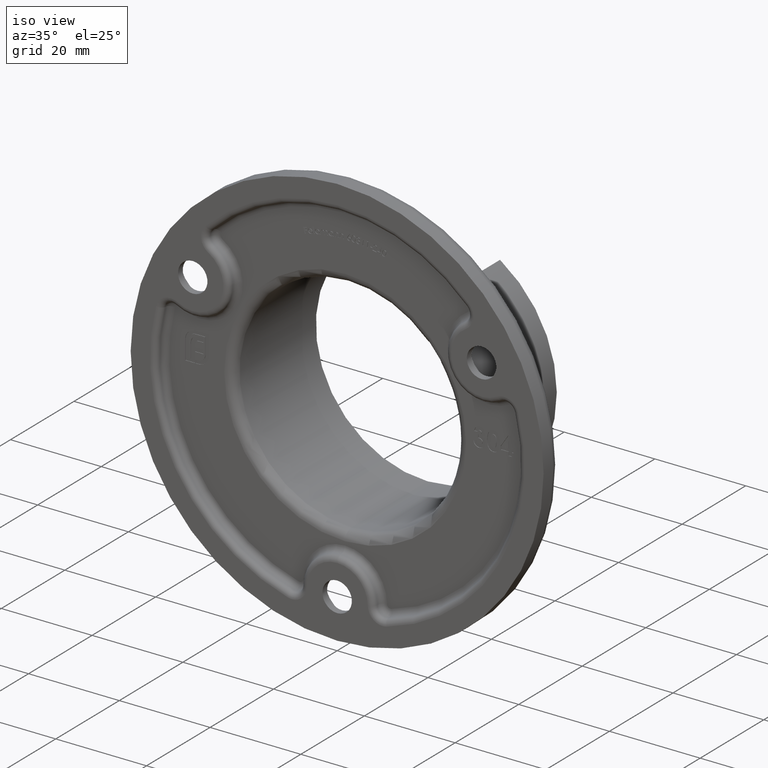
[diagram: clean part render]
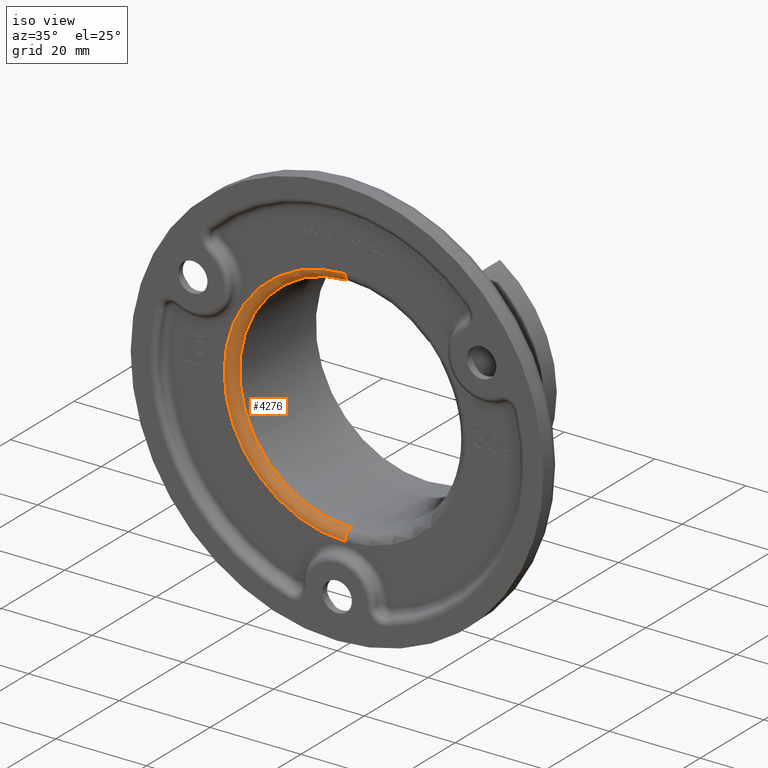
[diagram: same view with one face highlighted and labeled with its STEP entity id]
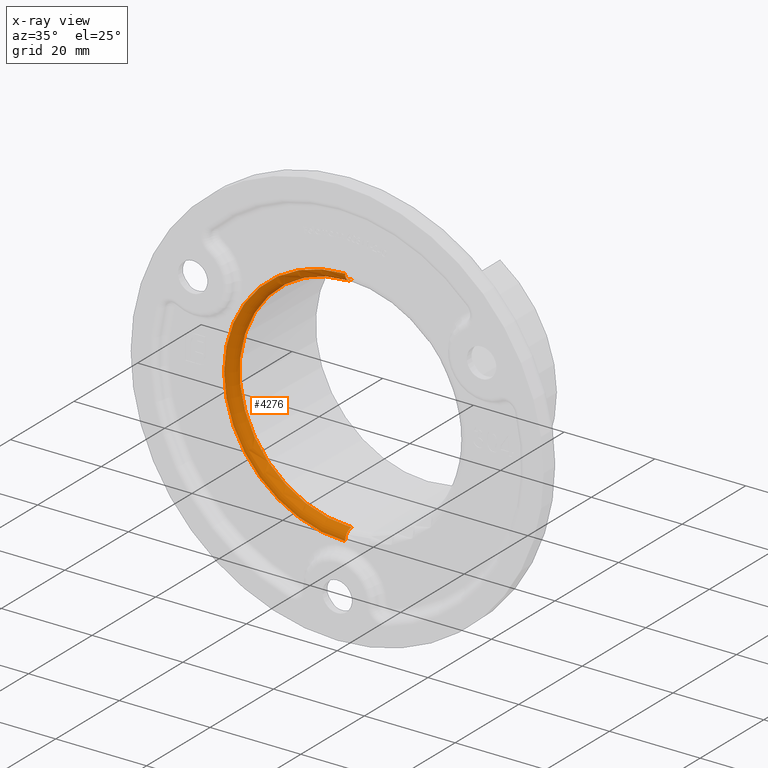
[diagram: x-ray of the same camera — body ghosted, the highlighted face saturated]
A machine part, iso view. The second image highlights one B-rep face of the part: STEP entity #4276.
The next image is the same camera in x-ray: the body ghosted, the highlighted face saturated — about 0% of this face is hidden behind the body in this view.
In plain terms, the highlighted toroidal blend (fillet) surface has major radius 26.65 mm and minor (blend) radius 2 mm.
Its self-contained STEP definition (entity closure, byte-faithful):
#464 = CARTESIAN_POINT ( 'NONE',  ( 3.018754359898225504E-15, 4.500000000000000888, 24.64999999999999858 ) ) ;
#1448 = AXIS2_PLACEMENT_3D ( 'NONE', #6290, #1476, #7697 ) ;
#1476 = DIRECTION ( 'NONE',  ( -0.000000000000000000, 1.000000000000000000, -0.000000000000000000 ) ) ;
#1983 = EDGE_CURVE ( 'NONE', #20028, #11412, #12716, .T. ) ;
#2888 = DIRECTION ( 'NONE',  ( 0.000000000000000000, 0.000000000000000000, 1.000000000000000000 ) ) ;
#3058 = AXIS2_PLACEMENT_3D ( 'NONE', #20745, #19326, #7841 ) ;
#3071 = EDGE_CURVE ( 'NONE', #11412, #3795, #15763, .T. ) ;
#3115 = VERTEX_POINT ( 'NONE', #464 ) ;
#3720 = DIRECTION ( 'NONE',  ( 0.000000000000000000, 0.000000000000000000, 1.000000000000000000 ) ) ;
#3795 = VERTEX_POINT ( 'NONE', #17101 ) ;
#4276 = ADVANCED_FACE ( 'NONE', ( #16717 ), #6894, .T. ) ;
#4499 = CARTESIAN_POINT ( 'NONE',  ( 3.263683719727696195E-15, 2.500000000000000444, -26.64999999999999858 ) ) ;
#4908 = EDGE_CURVE ( 'NONE', #3115, #3795, #7132, .T. ) ;
#5338 = CIRCLE ( 'NONE', #11071, 24.64999999999999858 ) ;
#5775 = AXIS2_PLACEMENT_3D ( 'NONE', #13585, #18312, #3720 ) ;
#6290 = CARTESIAN_POINT ( 'NONE',  ( 0.000000000000000000, 4.500000000000000888, 0.000000000000000000 ) ) ;
#6311 = EDGE_CURVE ( 'NONE', #3115, #20028, #5338, .T. ) ;
#6624 = CARTESIAN_POINT ( 'NONE',  ( 0.000000000000000000, 4.500000000000000888, -24.64999999999999858 ) ) ;
#6894 = TOROIDAL_SURFACE ( 'NONE', #1448, 26.64999999999999858, 2.000000000000000000 ) ;
#7132 = CIRCLE ( 'NONE', #5775, 2.000000000000001776 ) ;
#7697 = DIRECTION ( 'NONE',  ( 0.000000000000000000, 0.000000000000000000, 1.000000000000000000 ) ) ;
#7841 = DIRECTION ( 'NONE',  ( 1.224646799147351482E-16, 0.000000000000000000, -1.000000000000000000 ) ) ;
#8035 = ORIENTED_EDGE ( 'NONE', *, *, #6311, .F. ) ;
#8373 = EDGE_LOOP ( 'NONE', ( #14718, #8035, #18229, #18210 ) ) ;
#9175 = CARTESIAN_POINT ( 'NONE',  ( 0.000000000000000000, 2.500000000000000000, 0.000000000000000000 ) ) ;
#9241 = DIRECTION ( 'NONE',  ( 0.000000000000000000, -1.000000000000000000, 0.000000000000000000 ) ) ;
#11071 = AXIS2_PLACEMENT_3D ( 'NONE', #19106, #9241, #18961 ) ;
#11412 = VERTEX_POINT ( 'NONE', #4499 ) ;
#12716 = CIRCLE ( 'NONE', #3058, 2.000000000000001776 ) ;
#13585 = CARTESIAN_POINT ( 'NONE',  ( 0.000000000000000000, 4.500000000000000888, 26.64999999999999858 ) ) ;
#14718 = ORIENTED_EDGE ( 'NONE', *, *, #1983, .F. ) ;
#15763 = CIRCLE ( 'NONE', #18590, 26.64999999999999858 ) ;
#16717 = FACE_OUTER_BOUND ( 'NONE', #8373, .T. ) ;
#17101 = CARTESIAN_POINT ( 'NONE',  ( 0.000000000000000000, 2.500000000000000444, 26.64999999999999858 ) ) ;
#18210 = ORIENTED_EDGE ( 'NONE', *, *, #3071, .F. ) ;
#18229 = ORIENTED_EDGE ( 'NONE', *, *, #4908, .T. ) ;
#18312 = DIRECTION ( 'NONE',  ( -1.000000000000000000, 0.000000000000000000, 0.000000000000000000 ) ) ;
#18590 = AXIS2_PLACEMENT_3D ( 'NONE', #9175, #20450, #2888 ) ;
#18961 = DIRECTION ( 'NONE',  ( 0.000000000000000000, 0.000000000000000000, 1.000000000000000000 ) ) ;
#19106 = CARTESIAN_POINT ( 'NONE',  ( 0.000000000000000000, 4.500000000000000888, 0.000000000000000000 ) ) ;
#19326 = DIRECTION ( 'NONE',  ( 1.000000000000000000, 0.000000000000000000, 1.224646799147353207E-16 ) ) ;
#20028 = VERTEX_POINT ( 'NONE', #6624 ) ;
#20450 = DIRECTION ( 'NONE',  ( -0.000000000000000000, 1.000000000000000000, -0.000000000000000000 ) ) ;
#20745 = CARTESIAN_POINT ( 'NONE',  ( 3.263683719727696195E-15, 4.500000000000000888, -26.64999999999999858 ) ) ;